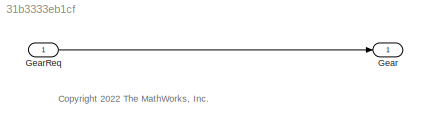
MODEL slx_31b3333eb1cf
KIND model
CONFIG StartFcn = %tic
CONFIG StopFcn = %toc
BLOCK [Outport] Gear
  OutDataTypeStr = double
  PortDimensions = 1
  SamplingMode = Sample based
  SignalType = real
  VectorParamsAs1DForOutWhenUnconnected = off
BLOCK [Inport] GearReq
  OutDataTypeStr = double
  PortDimensions = 1
  SamplingMode = Sample based
  SignalType = real
ANNOTATION (root): <copyright redacted>
LINE GearReq:1 -> Gear:1
